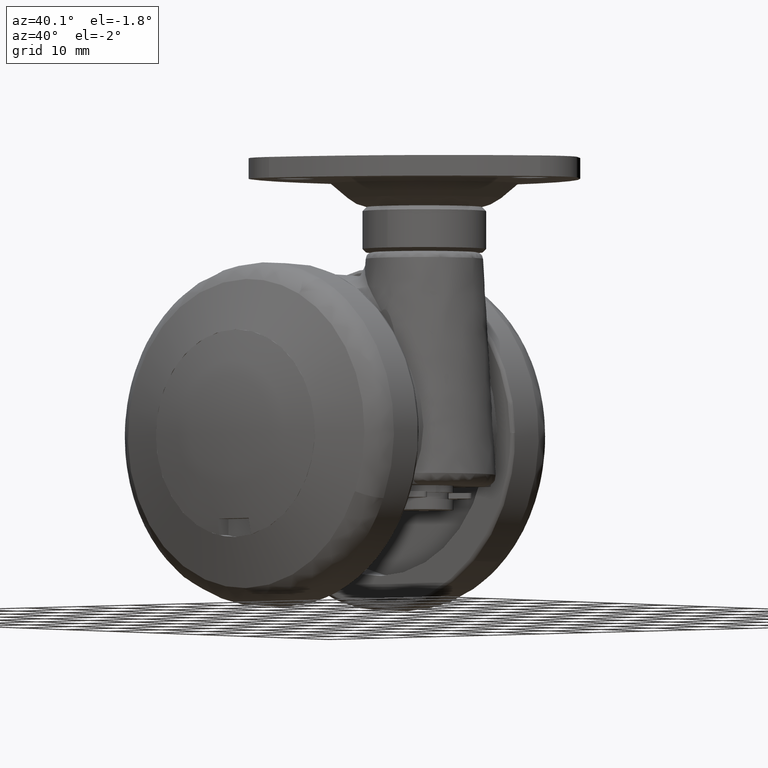
[diagram: clean part render]
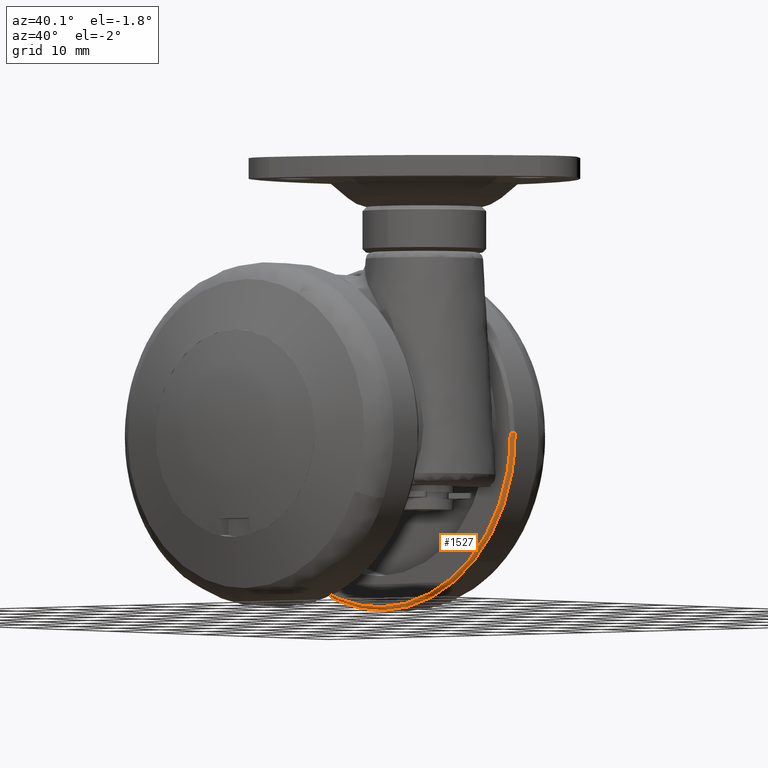
[diagram: same view with one face highlighted and labeled with its STEP entity id]
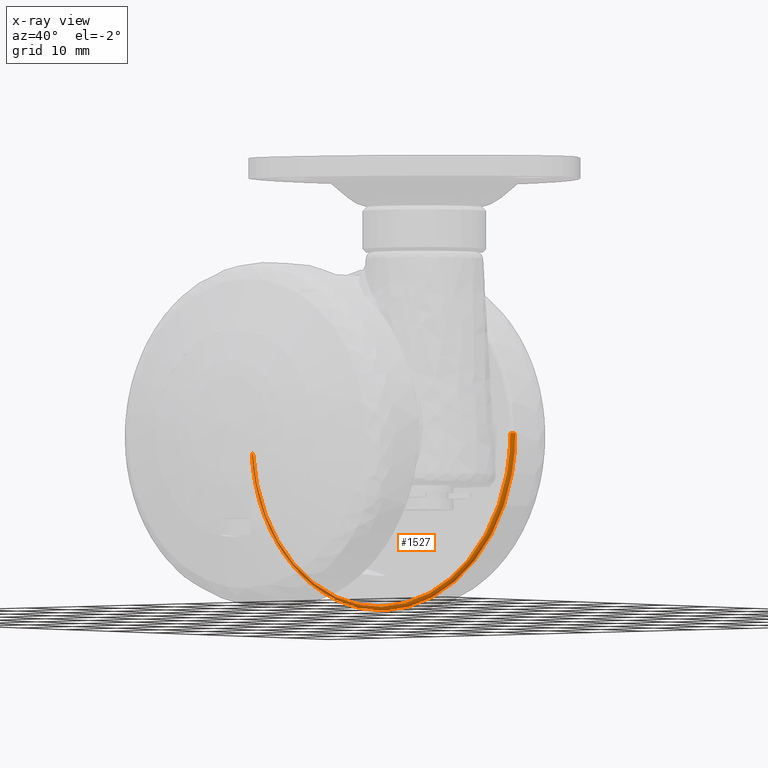
[diagram: x-ray of the same camera — body ghosted, the highlighted face saturated]
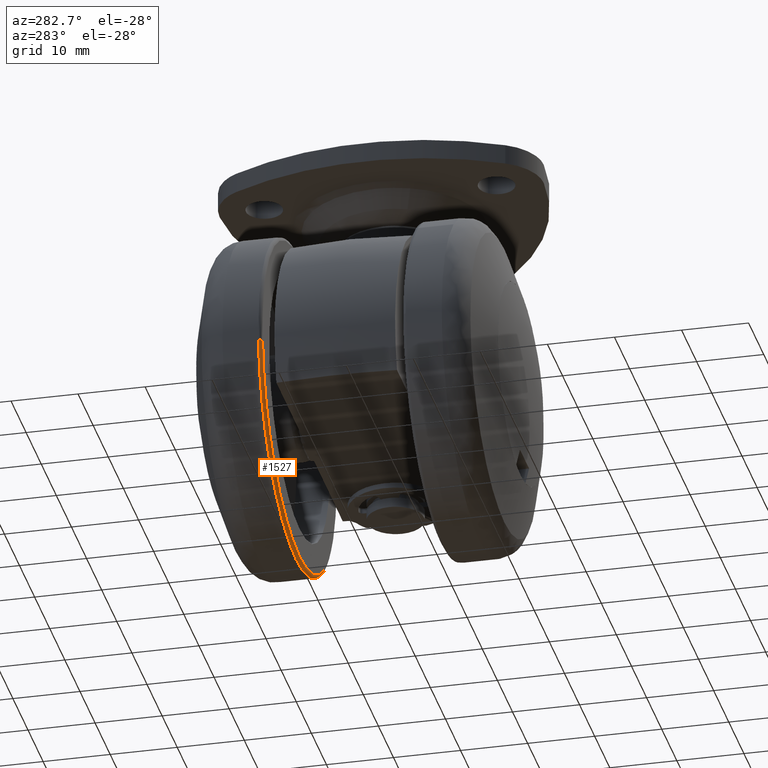
[diagram: same view with one face highlighted and labeled with its STEP entity id]
A machine part, auxiliary view. The second image highlights one B-rep face of the part: STEP entity #1527.
The next image is the same camera in x-ray: the body ghosted, the highlighted face saturated — about 20% of this face is hidden behind the body in this view.
A second angle (auxiliary view) of the same face is appended — the face is thin or edge-on in the first view.
In plain terms, the highlighted face is a freeform B-spline surface patch.
Its self-contained STEP definition (entity closure, byte-faithful):
#858=CARTESIAN_POINT('',(24.998026105095398,10.999999999827070,0.314150997084090));
#859=VERTEX_POINT('',#858);
#873=CARTESIAN_POINT('',(17.208863679919901,10.999999999999980,-18.134359951372218));
#874=VERTEX_POINT('',#873);
#875=CARTESIAN_POINT('',(17.208863679919904,10.999999999999979,-18.134359951372218));
#876=CARTESIAN_POINT('',(25.0,10.999999999999998,-10.740848812607252));
#877=CARTESIAN_POINT('',(25.0,11.0,4.041201E-015));
#878=CARTESIAN_POINT('',(24.999999999999996,10.999999999999998,0.157081699797529));
#879=CARTESIAN_POINT('',(24.998026105095398,10.999999999827073,0.314150997084090));
#887=(BOUNDED_CURVE()B_SPLINE_CURVE(2,(#875,#876,#877,#878,#879),.UNSPECIFIED.,.F.,.U.)B_SPLINE_CURVE_WITH_KNOTS((3,2,3),(0.121049514801486,0.250000000000000,0.252215704078276),.UNSPECIFIED.)CURVE()GEOMETRIC_REPRESENTATION_ITEM()RATIONAL_B_SPLINE_CURVE((0.853699662247520,0.848925109290603,1.0,0.997404141202303,0.994854295644003))REPRESENTATION_ITEM(''));
#888=EDGE_CURVE('',#874,#859,#887,.T.);
#996=CARTESIAN_POINT('',(0.0,11.0,-25.0));
#997=VERTEX_POINT('',#996);
#998=CARTESIAN_POINT('',(0.0,11.0,-25.0));
#999=CARTESIAN_POINT('',(9.973987510869462,10.999999999999998,-25.0));
#1000=CARTESIAN_POINT('',(17.208863679919897,10.999999999999979,-18.134359951372215));
#1008=(BOUNDED_CURVE()B_SPLINE_CURVE(2,(#998,#999,#1000),.UNSPECIFIED.,.F.,.U.)B_SPLINE_CURVE_WITH_KNOTS((3,3),(0.0,0.121049514801486),.UNSPECIFIED.)CURVE()GEOMETRIC_REPRESENTATION_ITEM()RATIONAL_B_SPLINE_CURVE((1.0,0.858181671895944,0.853699662247520))REPRESENTATION_ITEM(''));
#1009=EDGE_CURVE('',#997,#874,#1008,.T.);
#1011=CARTESIAN_POINT('',(-24.939141846010319,10.999999999846960,-1.743331289393074));
#1012=VERTEX_POINT('',#1011);
#1013=CARTESIAN_POINT('',(-24.939141846010326,10.999999999846954,-1.743331289393073));
#1014=CARTESIAN_POINT('',(-23.313421181652306,11.0,-24.999999999999989));
#1015=CARTESIAN_POINT('',(0.0,11.0,-25.0));
#1023=(BOUNDED_CURVE()B_SPLINE_CURVE(2,(#1013,#1014,#1015),.UNSPECIFIED.,.F.,.U.)B_SPLINE_CURVE_WITH_KNOTS((3,3),(0.762166313464962,1.0),.UNSPECIFIED.)CURVE()GEOMETRIC_REPRESENTATION_ITEM()RATIONAL_B_SPLINE_CURVE((0.972879876386861,0.721360504033933,1.0))REPRESENTATION_ITEM(''));
#1024=EDGE_CURVE('',#1012,#997,#1023,.T.);
#1403=CARTESIAN_POINT('',(-24.440359021878809,10.500000000000000,-1.708464664615953));
#1404=VERTEX_POINT('',#1403);
#1420=CARTESIAN_POINT('',(24.498065585705518,10.500000000000000,0.307867977188148));
#1421=VERTEX_POINT('',#1420);
#1435=CARTESIAN_POINT('',(24.498065585705518,10.500000000000000,0.307867977188148));
#1436=CARTESIAN_POINT('',(24.998026104749567,10.500000005424784,0.314150997079455));
#1437=CARTESIAN_POINT('',(24.998026105095398,10.999999999827070,0.314150997084090));
#1445=(BOUNDED_CURVE()B_SPLINE_CURVE(2,(#1435,#1436,#1437),.UNSPECIFIED.,.F.,.U.)B_SPLINE_CURVE_WITH_KNOTS((3,3),(-1.725134632155635,-0.274865357427546),.UNSPECIFIED.)CURVE()GEOMETRIC_REPRESENTATION_ITEM()RATIONAL_B_SPLINE_CURVE((0.883342145683286,0.624617226239015,0.883342149399963))REPRESENTATION_ITEM(''));
#1446=EDGE_CURVE('',#1421,#859,#1445,.T.);
#1451=CARTESIAN_POINT('',(-24.440359021878812,10.500000000000000,-1.708464664615953));
#1452=CARTESIAN_POINT('',(-24.939141845705464,10.500000025656107,-1.743331289364688));
#1453=CARTESIAN_POINT('',(-24.939141846010326,10.999999999846956,-1.743331289393074));
#1461=(BOUNDED_CURVE()B_SPLINE_CURVE(2,(#1451,#1452,#1453),.UNSPECIFIED.,.F.,.U.)B_SPLINE_CURVE_WITH_KNOTS((3,3),(-1.725134590661384,-0.274865357345971),.UNSPECIFIED.)CURVE()GEOMETRIC_REPRESENTATION_ITEM()RATIONAL_B_SPLINE_CURVE((0.863472057020283,0.610566969146947,0.863472075153750))REPRESENTATION_ITEM(''));
#1462=EDGE_CURVE('',#1404,#1012,#1461,.T.);
#1467=CARTESIAN_POINT('',(24.463298946788626,10.501210374893732,0.307431063708117));
#1468=CARTESIAN_POINT('',(24.770730010496742,10.501210374893745,-24.155867883080514));
#1469=CARTESIAN_POINT('',(0.307431063708114,10.501210374893741,-24.463298946788626));
#1470=CARTESIAN_POINT('',(-22.794569448012759,10.501210374893743,-24.753622529333740));
#1471=CARTESIAN_POINT('',(-24.405674267656348,10.501210374893732,-1.706040081574603));
#1472=CARTESIAN_POINT('',(25.036791743690241,10.461230464903434,0.314638166109306));
#1473=CARTESIAN_POINT('',(25.351429909799535,10.461230464903444,-24.722153577580933));
#1474=CARTESIAN_POINT('',(0.314638166109303,10.461230464903442,-25.036791743690241));
#1475=CARTESIAN_POINT('',(-23.328942241123936,10.461230464903446,-25.333921378179639));
#1476=CARTESIAN_POINT('',(-24.977816169959567,10.461230464903435,-1.746034756869077));
#1477=CARTESIAN_POINT('',(24.996815879681019,11.034768607958442,0.314135788142142));
#1478=CARTESIAN_POINT('',(25.310951667823154,11.034768607958449,-24.682680091538874));
#1479=CARTESIAN_POINT('',(0.314135788142140,11.034768607958453,-24.996815879681019));
#1480=CARTESIAN_POINT('',(-23.291693274400973,11.034768607958446,-25.293471091808989));
#1481=CARTESIAN_POINT('',(-24.937934471350591,11.034768607958441,-1.743246889768911));
#1489=(BOUNDED_SURFACE()B_SPLINE_SURFACE(2,2,((#1467,#1472,#1477),(#1468,#1473,#1478),(#1469,#1474,#1479),(#1470,#1475,#1480),(#1471,#1476,#1481)),.UNSPECIFIED.,.F.,.F.,.U.)B_SPLINE_SURFACE_WITH_KNOTS((3,2,3),(3,3),(0.0,41.419350911856768,81.181927787239260),(0.0,0.911188021400051),.UNSPECIFIED.)GEOMETRIC_REPRESENTATION_ITEM()RATIONAL_B_SPLINE_SURFACE(((0.910480482760921,0.597479212649723,0.910479839501573),(0.643806923498249,0.422481602882619,0.643806468645202),(0.910480482760921,0.597479212649723,0.910479839501573),(0.654473865868756,0.429481507273303,0.654473403479457),(0.889999953409548,0.584039396219610,0.889999324619804)))REPRESENTATION_ITEM('')SURFACE());
#1490=CARTESIAN_POINT('',(0.0,10.500000000000000,-24.500000000000000));
#1491=VERTEX_POINT('',#1490);
#1492=CARTESIAN_POINT('',(-24.440359021878816,10.500000000000002,-1.708464664615953));
#1493=CARTESIAN_POINT('',(-22.847152757801474,10.500000000000000,-24.500000000000000));
#1494=CARTESIAN_POINT('',(0.0,10.500000000000000,-24.500000000000000));
#1502=(BOUNDED_CURVE()B_SPLINE_CURVE(2,(#1492,#1493,#1494),.UNSPECIFIED.,.F.,.U.)B_SPLINE_CURVE_WITH_KNOTS((3,3),(0.762166313466598,1.0),.UNSPECIFIED.)CURVE()GEOMETRIC_REPRESENTATION_ITEM()RATIONAL_B_SPLINE_CURVE((0.972879876383403,0.721360504035849,1.0))REPRESENTATION_ITEM(''));
#1503=EDGE_CURVE('',#1404,#1491,#1502,.T.);
#1504=ORIENTED_EDGE('',*,*,#1503,.F.);
#1505=ORIENTED_EDGE('',*,*,#1462,.T.);
#1506=ORIENTED_EDGE('',*,*,#1024,.T.);
#1507=ORIENTED_EDGE('',*,*,#1009,.T.);
#1508=ORIENTED_EDGE('',*,*,#888,.T.);
#1509=ORIENTED_EDGE('',*,*,#1446,.F.);
#1510=CARTESIAN_POINT('',(0.0,10.500000000000000,-24.500000000000000));
#1511=CARTESIAN_POINT('',(24.499999999999993,10.500000000000000,-24.499999999999993));
#1512=CARTESIAN_POINT('',(24.500000000000000,10.500000000000000,3.857510E-015));
#1513=CARTESIAN_POINT('',(24.499999999999996,10.500000000000000,0.153940065813244));
#1514=CARTESIAN_POINT('',(24.498065585705515,10.500000000000004,0.307867977188148));
#1522=(BOUNDED_CURVE()B_SPLINE_CURVE(2,(#1510,#1511,#1512,#1513,#1514),.UNSPECIFIED.,.F.,.U.)B_SPLINE_CURVE_WITH_KNOTS((3,2,3),(0.0,0.250000000000000,0.252215704078443),.UNSPECIFIED.)CURVE()GEOMETRIC_REPRESENTATION_ITEM()RATIONAL_B_SPLINE_CURVE((1.0,0.707106781186547,1.0,0.997404141202107,0.994854295643618))REPRESENTATION_ITEM(''));
#1523=EDGE_CURVE('',#1491,#1421,#1522,.T.);
#1524=ORIENTED_EDGE('',*,*,#1523,.F.);
#1525=EDGE_LOOP('',(#1504,#1505,#1506,#1507,#1508,#1509,#1524));
#1526=FACE_OUTER_BOUND('',#1525,.T.);
#1527=ADVANCED_FACE('',(#1526),#1489,.T.);